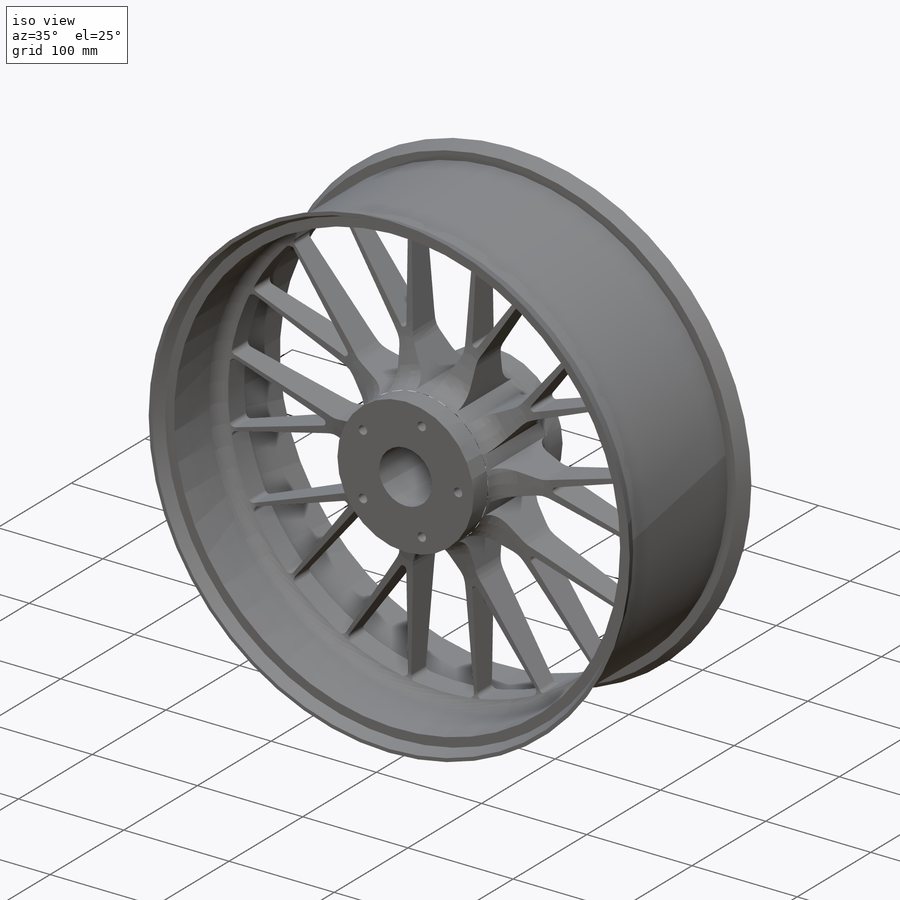
[diagram: iso view]
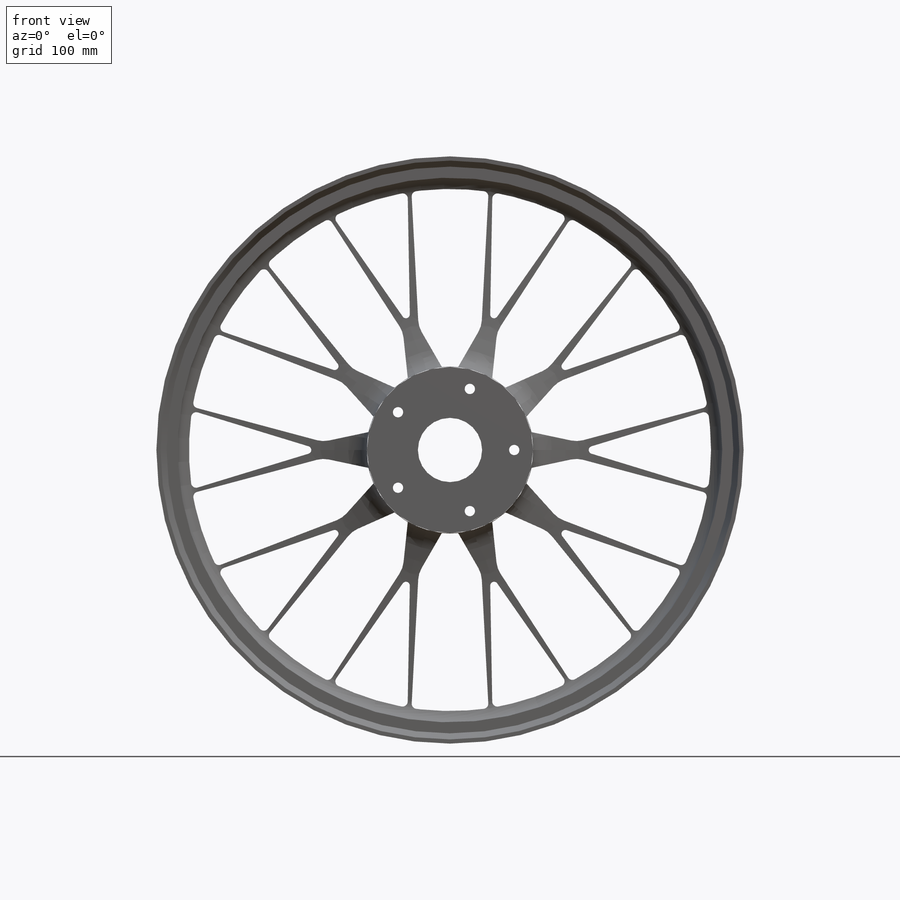
[diagram: front view]
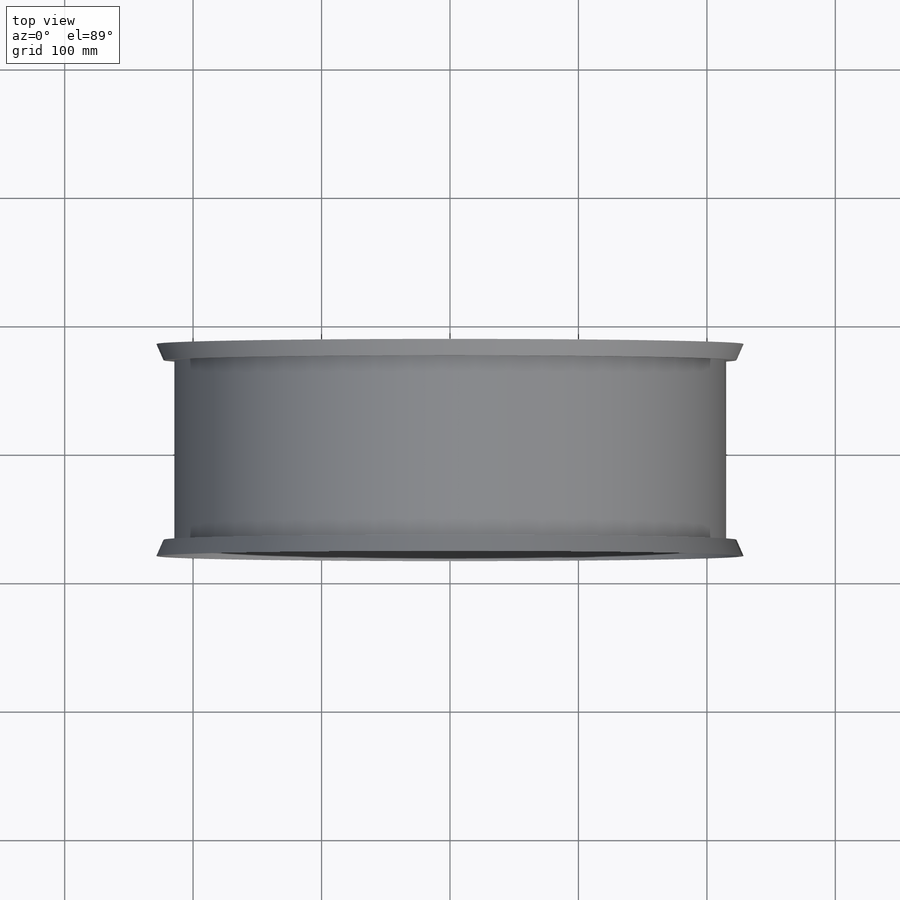
[diagram: top view]
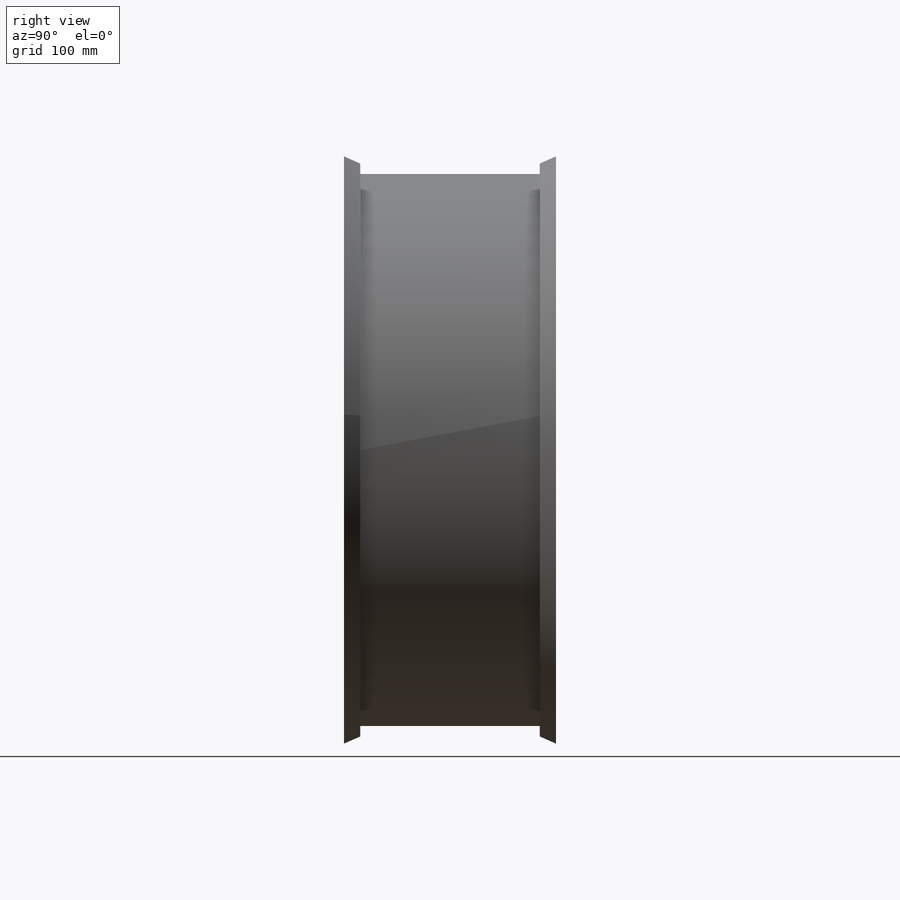
[diagram: right view]
SOLIDWORKS PART (.sldprt)
format: sldprt  version: not decoded by parser v0  size: 937,472 bytes
history: native  units: mm
features: sketch x4, cut_extrude x2, material x1, extrude x1, cut_revolve x1 (+13 scaffold rows collapsed)
feature tree (22):
  scaffold x13  (default folders/planes/origin — collapsed)
  material  "7050-T7651"
  sketch  "Sketch1"  dims[c1.D1=50.0mm c1.D2=406.4mm c1.D3=130.0mm c1.D11=3.0mm c1.D12=20.0mm c1.D13=4.0mm c1.D15=457.2mm c1.D16=100.0mm c1.D17=8.0mm c1.D19=4.0mm c1.D4=~102.727492mm c2.D4=36.0deg c3.D4=50.0mm c3.D5=105.0mm c3.D6=~22.857967mm c4.D6=20.0deg c4.D7=10.0mm c4.D8=~244.50922mm c5.D8=18.0deg c5.D4=~99.254042mm c6.D4=6.0deg c6.D6=60.0mm c6.D9=~18.075851mm c7.D9=30.0deg c7.D7=~102.899135mm c8.D7=2.0deg c9.D7=3.0mm c9.D10=~85.310813mm c10.D10=2.0deg c10.D19=~232.542087mm c11.D19=18.0deg c12.D19=203.2mm c13.D19=36.0deg c14.D19=108.0mm c14.D14=10.0 c14.D18=5.0]
  extrude  "Boss-Extrude1"  Depth=165.1mm
  sketch  "Sketch2"  dims[c1.D5=20.0mm c1.D6=100.0mm c1.D1=25.4mm c1.D2=20.0mm c1.D3=212.0mm c1.D4=~36.223947mm c2.D4=16.0deg c2.D1=~96.39891mm c3.D1=3.0deg c3.D7=139.7mm c3.D8=3.0mm c3.D9=228.6mm c3.D10=3.0mm c3.D11=2.0mm c3.D12=110.0mm c3.D13=8.0mm c4.D8=3.0mm]
  cut_revolve  "Cut-Revolve1"  Angle=360deg
  sketch  "Croquis1"  dims[D1=0.0mm]
  cut_extrude  "Cortar-Extruir1"  Depth=22.125mm
  sketch  "Croquis2"  dims[D1=0.0mm]
  cut_extrude  "Cortar-Extruir2"  Depth=22.125mm
decode coverage: 8 of 8 modeling features carry decoded parameters
note: ~ marks probable driven/reference dimensions
note: suppression state not decoded; provenance and decode notes live in map.json
